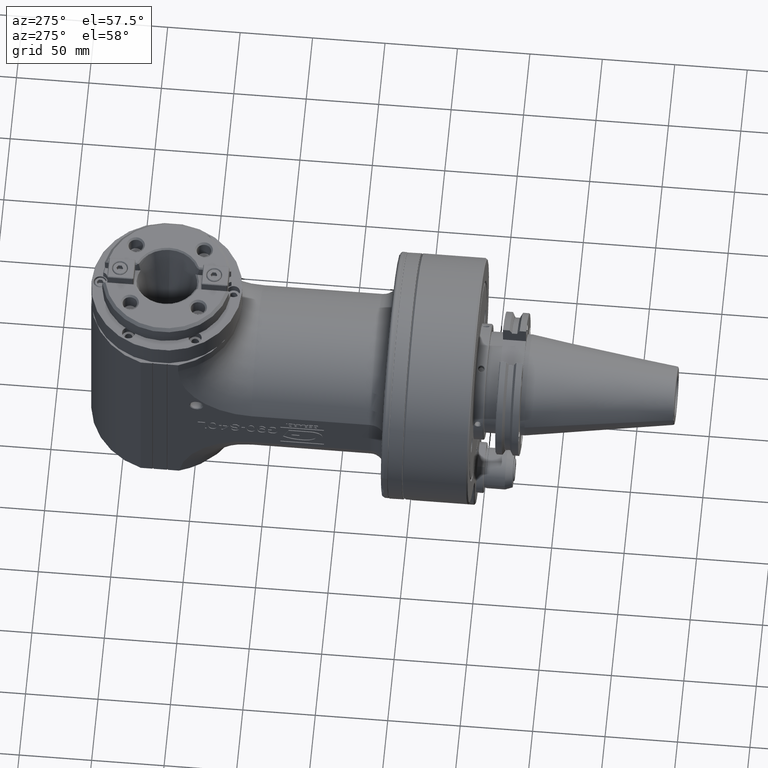
[diagram: clean part render]
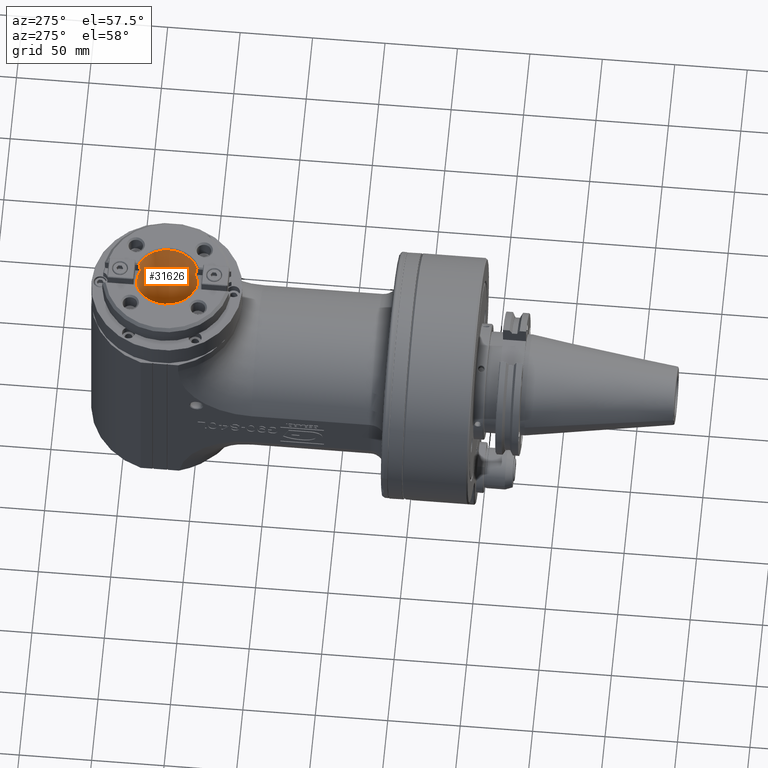
[diagram: same view with one face highlighted and labeled with its STEP entity id]
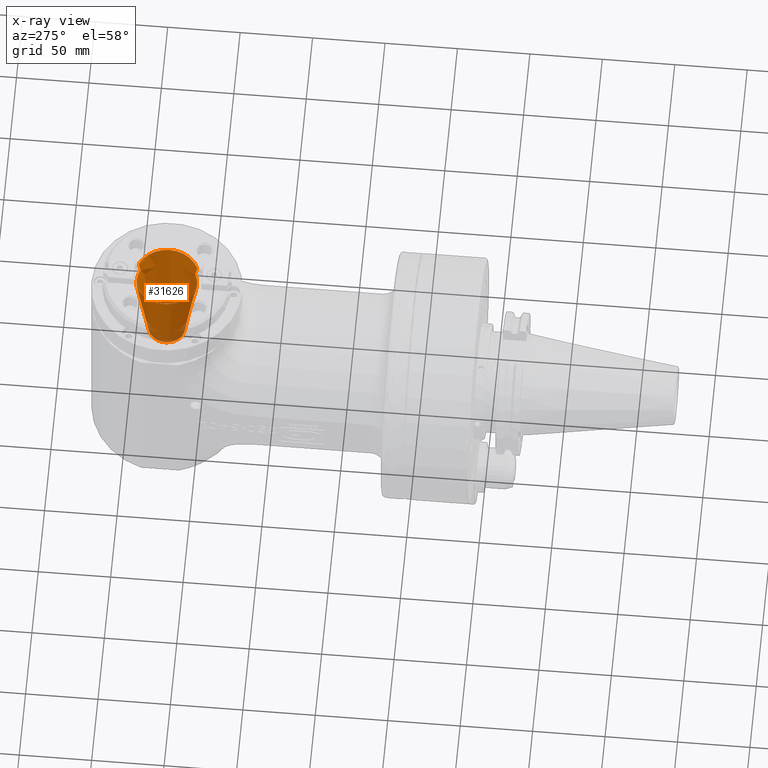
[diagram: x-ray of the same camera — body ghosted, the highlighted face saturated]
A machine part, auxiliary view. The second image highlights one B-rep face of the part: STEP entity #31626.
The next image is the same camera in x-ray: the body ghosted, the highlighted face saturated — about 7% of this face is hidden behind the body in this view.
In plain terms, the highlighted conical surface has half-angle 8.297 deg.
Its self-contained STEP definition (entity closure, byte-faithful):
#91=ELLIPSE('',#33797,148.096319020749,1.92117951425168);
#92=ELLIPSE('',#34051,148.096257410958,1.92117862571375);
#390=B_SPLINE_CURVE_WITH_KNOTS('',3,(#51997,#51998,#51999,#52000,#52001,
#52002,#52003,#52004,#52005,#52006,#52007,#52008,#52009,#52010,#52011,#52012),
 .UNSPECIFIED.,.F.,.F.,(4,3,3,3,3,4),(3.31968799680257E-8,0.1533853694663,
0.2503408445765,0.444251794797,0.7351182201276,0.999999998910064),
 .UNSPECIFIED.);
#438=B_SPLINE_CURVE_WITH_KNOTS('',3,(#56559,#56560,#56561,#56562,#56563,
#56564,#56565,#56566,#56567,#56568,#56569,#56570,#56571,#56572,#56573,#56574),
 .UNSPECIFIED.,.F.,.F.,(4,3,3,3,3,4),(3.31968777793636E-8,0.1533853694663,
0.2503408445765,0.4442517947969,0.7351182201276,0.999999998910061),
 .UNSPECIFIED.);
#1145=CONICAL_SURFACE('',#34049,17.41534780532,0.14480996803797);
#3547=LINE('',#56551,#6458);
#6458=VECTOR('',#40752,17.41534780532);
#8458=FACE_OUTER_BOUND('',#10420,.T.);
#10420=EDGE_LOOP('',(#25761,#25762,#25763,#25764,#25765,#25766,#25767,#25768,
#25769,#25770,#25771,#25772,#25773));
#11693=CIRCLE('',#33796,20.91404961607);
#11810=CIRCLE('',#34047,12.75);
#11811=CIRCLE('',#34048,12.75);
#11812=CIRCLE('',#34050,22.08069561065);
#11813=CIRCLE('',#34052,20.91404961607);
#11814=CIRCLE('',#34053,22.08069561065);
#11815=CIRCLE('',#34054,22.08069561065);
#14149=VERTEX_POINT('',#51989);
#14150=VERTEX_POINT('',#51996);
#14151=VERTEX_POINT('',#52020);
#14152=VERTEX_POINT('',#52068);
#14369=VERTEX_POINT('',#56544);
#14370=VERTEX_POINT('',#56545);
#14371=VERTEX_POINT('',#56550);
#14372=VERTEX_POINT('',#56552);
#14373=VERTEX_POINT('',#56554);
#14374=VERTEX_POINT('',#56556);
#14375=VERTEX_POINT('',#56558);
#18008=EDGE_CURVE('',#14150,#14149,#390,.T.);
#18010=EDGE_CURVE('',#14150,#14151,#11693,.T.);
#18012=EDGE_CURVE('',#14152,#14151,#91,.T.);
#18355=EDGE_CURVE('',#14369,#14370,#11810,.T.);
#18356=EDGE_CURVE('',#14370,#14369,#11811,.T.);
#18358=EDGE_CURVE('',#14370,#14371,#3547,.T.);
#18359=EDGE_CURVE('',#14372,#14371,#11812,.T.);
#18360=EDGE_CURVE('',#14372,#14373,#92,.T.);
#18361=EDGE_CURVE('',#14374,#14373,#11813,.T.);
#18362=EDGE_CURVE('',#14374,#14375,#438,.T.);
#18363=EDGE_CURVE('',#14152,#14375,#11814,.T.);
#18364=EDGE_CURVE('',#14371,#14149,#11815,.T.);
#25761=ORIENTED_EDGE('',*,*,#18355,.F.);
#25762=ORIENTED_EDGE('',*,*,#18356,.F.);
#25763=ORIENTED_EDGE('',*,*,#18358,.T.);
#25764=ORIENTED_EDGE('',*,*,#18359,.F.);
#25765=ORIENTED_EDGE('',*,*,#18360,.T.);
#25766=ORIENTED_EDGE('',*,*,#18361,.F.);
#25767=ORIENTED_EDGE('',*,*,#18362,.T.);
#25768=ORIENTED_EDGE('',*,*,#18363,.F.);
#25769=ORIENTED_EDGE('',*,*,#18012,.T.);
#25770=ORIENTED_EDGE('',*,*,#18010,.F.);
#25771=ORIENTED_EDGE('',*,*,#18008,.T.);
#25772=ORIENTED_EDGE('',*,*,#18364,.F.);
#25773=ORIENTED_EDGE('',*,*,#18358,.F.);
#31626=ADVANCED_FACE('',(#8458),#1145,.F.);
#33796=AXIS2_PLACEMENT_3D('',#52021,#40067,#40068);
#33797=AXIS2_PLACEMENT_3D('',#52069,#40069,#40070);
#34047=AXIS2_PLACEMENT_3D('',#56546,#40745,#40746);
#34048=AXIS2_PLACEMENT_3D('',#56547,#40747,#40748);
#34049=AXIS2_PLACEMENT_3D('',#56549,#40750,#40751);
#34050=AXIS2_PLACEMENT_3D('',#56553,#40753,#40754);
#34051=AXIS2_PLACEMENT_3D('',#56555,#40755,#40756);
#34052=AXIS2_PLACEMENT_3D('',#56557,#40757,#40758);
#34053=AXIS2_PLACEMENT_3D('',#56575,#40759,#40760);
#34054=AXIS2_PLACEMENT_3D('',#56576,#40761,#40762);
#40067=DIRECTION('center_axis',(0.,0.,-1.));
#40068=DIRECTION('ref_axis',(0.425879550232622,-0.904779867533346,0.));
#40069=DIRECTION('center_axis',(0.991882036328208,-0.125754271991833,-0.0188650227991495));
#40070=DIRECTION('ref_axis',(-0.000194308369377724,0.146855885532797,-0.989157879778873));
#40745=DIRECTION('center_axis',(0.,0.,1.));
#40746=DIRECTION('ref_axis',(1.,0.,0.));
#40747=DIRECTION('center_axis',(0.,0.,1.));
#40748=DIRECTION('ref_axis',(1.,0.,0.));
#40750=DIRECTION('center_axis',(0.,0.,1.));
#40751=DIRECTION('ref_axis',(-1.,0.,0.));
#40752=DIRECTION('',(0.144304389353959,1.76721908525239E-17,0.989533346185555));
#40753=DIRECTION('center_axis',(0.,0.,-1.));
#40754=DIRECTION('ref_axis',(0.404118557084808,0.914706615161218,0.));
#40755=DIRECTION('center_axis',(-0.991882036327007,0.125754272001084,-0.0188650228006284));
#40756=DIRECTION('ref_axis',(-0.000194307892254686,0.146855889214924,0.989157879232298));
#40757=DIRECTION('center_axis',(0.,0.,-1.));
#40758=DIRECTION('ref_axis',(-0.425879550232622,0.904779867533346,0.));
#40759=DIRECTION('center_axis',(0.,0.,-1.));
#40760=DIRECTION('ref_axis',(-0.404118557084808,-0.914706615161218,0.));
#40761=DIRECTION('center_axis',(0.,0.,-1.));
#40762=DIRECTION('ref_axis',(0.404118557084808,0.914706615161218,0.));
#51989=CARTESIAN_POINT('',(8.91669123776837,182.799759017867,104.010466645752));
#51996=CARTESIAN_POINT('',(8.9068649974113,184.077388285947,96.0104668136903));
#51997=CARTESIAN_POINT('Ctrl Pts',(8.90686433495904,184.077388132397,96.0104667899235));
#51998=CARTESIAN_POINT('Ctrl Pts',(8.9074047898919,184.012478011878,96.4147679519664));
#51999=CARTESIAN_POINT('Ctrl Pts',(8.90793869716126,183.947532416031,96.8196326325808));
#52000=CARTESIAN_POINT('Ctrl Pts',(8.90846659122368,183.882522604746,97.2252339159559));
#52001=CARTESIAN_POINT('Ctrl Pts',(8.90880027513946,183.841429647015,97.4816160844955));
#52002=CARTESIAN_POINT('Ctrl Pts',(8.9091315545284,183.800311035373,97.7382925672465));
#52003=CARTESIAN_POINT('Ctrl Pts',(8.90946054583123,183.759159548265,97.9953070844899));
#52004=CARTESIAN_POINT('Ctrl Pts',(8.91011852843689,183.676856574049,98.509336118977));
#52005=CARTESIAN_POINT('Ctrl Pts',(8.9107673711897,183.594422071102,99.024717287113));
#52006=CARTESIAN_POINT('Ctrl Pts',(8.91140784748938,183.511798597583,99.5418004045835));
#52007=CARTESIAN_POINT('Ctrl Pts',(8.91236856193889,183.387863387304,100.317425080789));
#52008=CARTESIAN_POINT('Ctrl Pts',(8.91331022485919,183.263503488224,101.09687922241));
#52009=CARTESIAN_POINT('Ctrl Pts',(8.91423002435189,183.139233199591,101.876897947099));
#52010=CARTESIAN_POINT('Ctrl Pts',(8.91506765325827,183.026064637543,102.587233445754));
#52011=CARTESIAN_POINT('Ctrl Pts',(8.91588737355869,182.912969890151,103.298037079018));
#52012=CARTESIAN_POINT('Ctrl Pts',(8.91669124886661,182.799759017047,104.010466645609));
#52020=CARTESIAN_POINT('',(-8.90686499769755,184.077388285942,96.0104668138105));
#52021=CARTESIAN_POINT('Origin',(0.,203.,96.01046665381));
#52068=CARTESIAN_POINT('',(-8.91669123731886,182.7997590168,104.010466649104));
#52069=CARTESIAN_POINT('Origin',(-8.7073816606526,170.764805700694,195.240529373618));
#56544=CARTESIAN_POINT('',(-12.75,203.,40.02742018394));
#56545=CARTESIAN_POINT('',(12.7499999999968,203.,40.0274201839405));
#56546=CARTESIAN_POINT('Origin',(0.,203.,40.02742018394));
#56547=CARTESIAN_POINT('Origin',(0.,203.,40.02742018394));
#56549=CARTESIAN_POINT('Origin',(0.,203.,72.01894341888));
#56550=CARTESIAN_POINT('',(22.0806956107285,203.,104.010466654404));
#56551=CARTESIAN_POINT('',(17.41534780532,203.,72.01894341888));
#56552=CARTESIAN_POINT('',(8.91669123731883,223.2002409832,104.010466649105));
#56553=CARTESIAN_POINT('Origin',(0.,203.,104.0104666538));
#56554=CARTESIAN_POINT('',(8.90686499769758,221.922611714058,96.0104668138104));
#56555=CARTESIAN_POINT('Origin',(8.70738178047626,235.235186877292,195.240473597129));
#56556=CARTESIAN_POINT('',(-8.9068649974113,221.922611714053,96.0104668136903));
#56557=CARTESIAN_POINT('Origin',(0.,203.,96.01046665381));
#56558=CARTESIAN_POINT('',(-8.91669123776838,223.200240982133,104.010466645752));
#56559=CARTESIAN_POINT('Ctrl Pts',(-8.90686433495902,221.922611867603,96.0104667899235));
#56560=CARTESIAN_POINT('Ctrl Pts',(-8.9074047898919,221.987521988122,96.4147679519664));
#56561=CARTESIAN_POINT('Ctrl Pts',(-8.90793869716126,222.052467583969,96.8196326325808));
#56562=CARTESIAN_POINT('Ctrl Pts',(-8.90846659122367,222.117477395254,97.2252339159559));
#56563=CARTESIAN_POINT('Ctrl Pts',(-8.90880027513945,222.158570352985,97.4816160844956));
#56564=CARTESIAN_POINT('Ctrl Pts',(-8.90913155452842,222.199688964627,97.7382925672466));
#56565=CARTESIAN_POINT('Ctrl Pts',(-8.90946054583125,222.240840451735,97.9953070844901));
#56566=CARTESIAN_POINT('Ctrl Pts',(-8.9101185284369,222.323143425951,98.509336118977));
#56567=CARTESIAN_POINT('Ctrl Pts',(-8.91076737118969,222.405577928898,99.0247172871128));
#56568=CARTESIAN_POINT('Ctrl Pts',(-8.91140784748936,222.488201402417,99.541800404583));
#56569=CARTESIAN_POINT('Ctrl Pts',(-8.91236856193888,222.612136612696,100.317425080789));
#56570=CARTESIAN_POINT('Ctrl Pts',(-8.91331022485918,222.736496511776,101.09687922241));
#56571=CARTESIAN_POINT('Ctrl Pts',(-8.91423002435189,222.860766800409,101.876897947099));
#56572=CARTESIAN_POINT('Ctrl Pts',(-8.91506765325827,222.973935362457,102.587233445754));
#56573=CARTESIAN_POINT('Ctrl Pts',(-8.9158873735587,223.087030109849,103.298037079017));
#56574=CARTESIAN_POINT('Ctrl Pts',(-8.9166912488666,223.200240982953,104.010466645609));
#56575=CARTESIAN_POINT('Origin',(0.,203.,104.0104666538));
#56576=CARTESIAN_POINT('Origin',(0.,203.,104.0104666538));